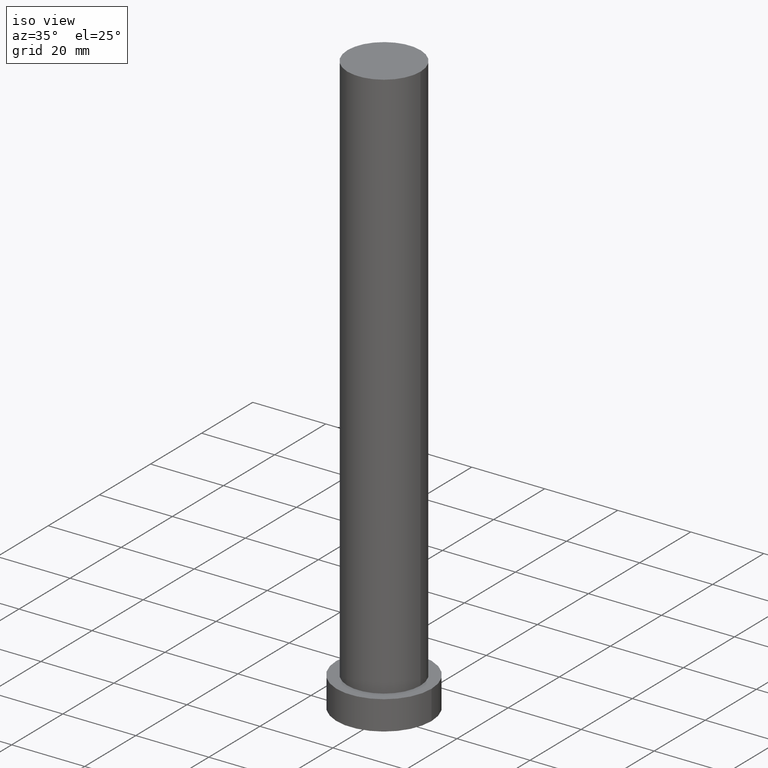
[diagram: clean part render]
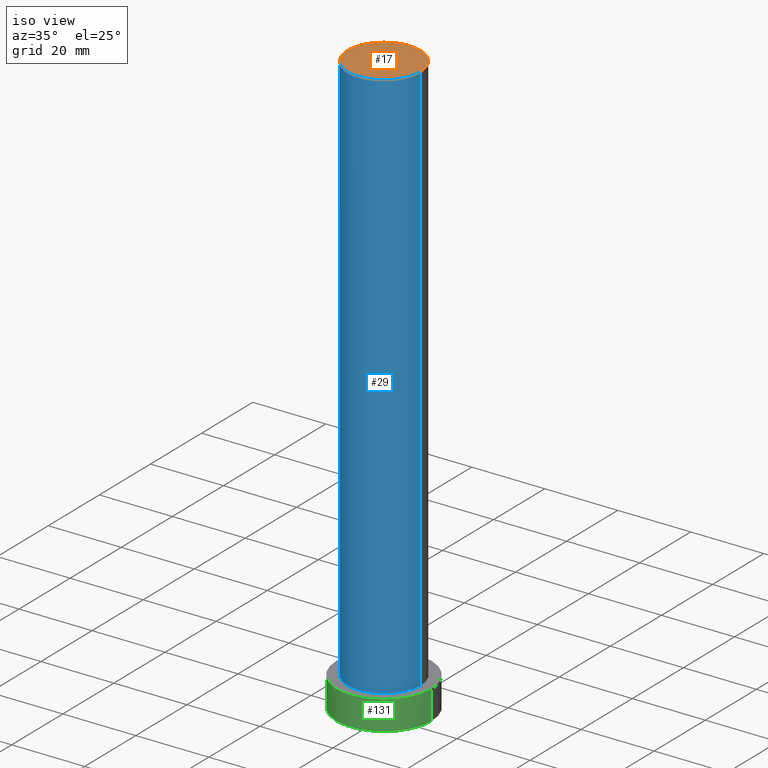
[diagram: same view with three faces highlighted in distinct colors, each labeled with its STEP entity id]
A machine part, iso view with three faces highlighted in distinct colors.
Their STEP definitions:

[orange] entity #17 — the highlighted planar face has unit normal (0, 0, 1).
#1 = CARTESIAN_POINT ( 'NONE',  ( -10.00000000000000000, 0.000000000000000000, 160.0000000000000000 ) ) ;
#6 = PLANE ( 'NONE',  #111 ) ;
#11 = FACE_OUTER_BOUND ( 'NONE', #201, .T. ) ;
#17 = ADVANCED_FACE ( 'NONE', ( #11 ), #6, .T. ) ;
#32 = ORIENTED_EDGE ( 'NONE', *, *, #229, .T. ) ;
#71 = DIRECTION ( 'NONE',  ( 0.000000000000000000, 0.000000000000000000, 1.000000000000000000 ) ) ;
#89 = DIRECTION ( 'NONE',  ( 1.000000000000000000, 0.000000000000000000, -0.000000000000000000 ) ) ;
#91 = ORIENTED_EDGE ( 'NONE', *, *, #170, .T. ) ;
#103 = CIRCLE ( 'NONE', #104, 10.00000000000000000 ) ;
#104 = AXIS2_PLACEMENT_3D ( 'NONE', #139, #197, #193 ) ;
#111 = AXIS2_PLACEMENT_3D ( 'NONE', #242, #71, #89 ) ;
#116 = DIRECTION ( 'NONE',  ( 0.000000000000000000, 0.000000000000000000, 1.000000000000000000 ) ) ;
#128 = AXIS2_PLACEMENT_3D ( 'NONE', #137, #116, #159 ) ;
#137 = CARTESIAN_POINT ( 'NONE',  ( 0.000000000000000000, 0.000000000000000000, 160.0000000000000000 ) ) ;
#139 = CARTESIAN_POINT ( 'NONE',  ( 0.000000000000000000, 0.000000000000000000, 160.0000000000000000 ) ) ;
#159 = DIRECTION ( 'NONE',  ( 1.000000000000000000, 0.000000000000000000, 0.000000000000000000 ) ) ;
#170 = EDGE_CURVE ( 'NONE', #199, #204, #232, .T. ) ;
#175 = CARTESIAN_POINT ( 'NONE',  ( 10.00000000000000000, 1.224646799147353256E-15, 160.0000000000000000 ) ) ;
#193 = DIRECTION ( 'NONE',  ( 1.000000000000000000, 0.000000000000000000, 0.000000000000000000 ) ) ;
#197 = DIRECTION ( 'NONE',  ( 0.000000000000000000, 0.000000000000000000, 1.000000000000000000 ) ) ;
#199 = VERTEX_POINT ( 'NONE', #175 ) ;
#201 = EDGE_LOOP ( 'NONE', ( #32, #91 ) ) ;
#204 = VERTEX_POINT ( 'NONE', #1 ) ;
#229 = EDGE_CURVE ( 'NONE', #204, #199, #103, .T. ) ;
#232 = CIRCLE ( 'NONE', #128, 10.00000000000000000 ) ;
#242 = CARTESIAN_POINT ( 'NONE',  ( 0.000000000000000000, 0.000000000000000000, 160.0000000000000000 ) ) ;

[blue] entity #29 — the highlighted cylindrical surface (partial cylindrical patch) has radius 10 mm, axis along (-0, -0, -1).
#1 = CARTESIAN_POINT ( 'NONE',  ( -10.00000000000000000, 0.000000000000000000, 160.0000000000000000 ) ) ;
#19 = CARTESIAN_POINT ( 'NONE',  ( -10.00000000000000000, 0.000000000000000000, 160.0000000000000000 ) ) ;
#29 = ADVANCED_FACE ( 'NONE', ( #125 ), #167, .T. ) ;
#61 = EDGE_CURVE ( 'NONE', #199, #211, #161, .T. ) ;
#63 = DIRECTION ( 'NONE',  ( -0.000000000000000000, -0.000000000000000000, -1.000000000000000000 ) ) ;
#72 = CARTESIAN_POINT ( 'NONE',  ( 0.000000000000000000, 0.000000000000000000, 160.0000000000000000 ) ) ;
#76 = CARTESIAN_POINT ( 'NONE',  ( -10.00000000000000000, 0.000000000000000000, 8.000000000000000000 ) ) ;
#86 = EDGE_CURVE ( 'NONE', #164, #211, #87, .T. ) ;
#87 = CIRCLE ( 'NONE', #132, 10.00000000000000000 ) ;
#99 = EDGE_CURVE ( 'NONE', #204, #164, #192, .T. ) ;
#103 = CIRCLE ( 'NONE', #104, 10.00000000000000000 ) ;
#104 = AXIS2_PLACEMENT_3D ( 'NONE', #139, #197, #193 ) ;
#106 = AXIS2_PLACEMENT_3D ( 'NONE', #72, #206, #227 ) ;
#122 = ORIENTED_EDGE ( 'NONE', *, *, #61, .F. ) ;
#125 = FACE_OUTER_BOUND ( 'NONE', #169, .T. ) ;
#132 = AXIS2_PLACEMENT_3D ( 'NONE', #153, #234, #156 ) ;
#139 = CARTESIAN_POINT ( 'NONE',  ( 0.000000000000000000, 0.000000000000000000, 160.0000000000000000 ) ) ;
#141 = DIRECTION ( 'NONE',  ( -0.000000000000000000, -0.000000000000000000, -1.000000000000000000 ) ) ;
#153 = CARTESIAN_POINT ( 'NONE',  ( 0.000000000000000000, 0.000000000000000000, 8.000000000000000000 ) ) ;
#155 = ORIENTED_EDGE ( 'NONE', *, *, #86, .T. ) ;
#156 = DIRECTION ( 'NONE',  ( 1.000000000000000000, 0.000000000000000000, 0.000000000000000000 ) ) ;
#161 = LINE ( 'NONE', #240, #251 ) ;
#164 = VERTEX_POINT ( 'NONE', #76 ) ;
#167 = CYLINDRICAL_SURFACE ( 'NONE', #106, 10.00000000000000000 ) ;
#169 = EDGE_LOOP ( 'NONE', ( #122, #186, #179, #155 ) ) ;
#175 = CARTESIAN_POINT ( 'NONE',  ( 10.00000000000000000, 1.224646799147353256E-15, 160.0000000000000000 ) ) ;
#179 = ORIENTED_EDGE ( 'NONE', *, *, #99, .T. ) ;
#180 = VECTOR ( 'NONE', #63, 1000.000000000000000 ) ;
#186 = ORIENTED_EDGE ( 'NONE', *, *, #229, .F. ) ;
#192 = LINE ( 'NONE', #19, #180 ) ;
#193 = DIRECTION ( 'NONE',  ( 1.000000000000000000, 0.000000000000000000, 0.000000000000000000 ) ) ;
#197 = DIRECTION ( 'NONE',  ( 0.000000000000000000, 0.000000000000000000, 1.000000000000000000 ) ) ;
#199 = VERTEX_POINT ( 'NONE', #175 ) ;
#204 = VERTEX_POINT ( 'NONE', #1 ) ;
#206 = DIRECTION ( 'NONE',  ( -0.000000000000000000, -0.000000000000000000, -1.000000000000000000 ) ) ;
#211 = VERTEX_POINT ( 'NONE', #237 ) ;
#227 = DIRECTION ( 'NONE',  ( -1.000000000000000000, 0.000000000000000000, 0.000000000000000000 ) ) ;
#229 = EDGE_CURVE ( 'NONE', #204, #199, #103, .T. ) ;
#234 = DIRECTION ( 'NONE',  ( 0.000000000000000000, 0.000000000000000000, 1.000000000000000000 ) ) ;
#237 = CARTESIAN_POINT ( 'NONE',  ( 10.00000000000000000, 1.224646799147353256E-15, 8.000000000000000000 ) ) ;
#240 = CARTESIAN_POINT ( 'NONE',  ( 10.00000000000000000, 1.224646799147353256E-15, 160.0000000000000000 ) ) ;
#251 = VECTOR ( 'NONE', #141, 1000.000000000000000 ) ;

[green] entity #131 — the highlighted cylindrical surface (partial cylindrical patch) has radius 13 mm, axis along (-0, -0, -1).
#2 = CARTESIAN_POINT ( 'NONE',  ( -13.00000000000000178, 0.000000000000000000, 0.000000000000000000 ) ) ;
#9 = EDGE_CURVE ( 'NONE', #28, #254, #181, .T. ) ;
#15 = CARTESIAN_POINT ( 'NONE',  ( 13.00000000000000178, 1.592040838891559293E-15, 0.000000000000000000 ) ) ;
#24 = VECTOR ( 'NONE', #168, 1000.000000000000000 ) ;
#28 = VERTEX_POINT ( 'NONE', #184 ) ;
#33 = AXIS2_PLACEMENT_3D ( 'NONE', #118, #83, #50 ) ;
#42 = EDGE_LOOP ( 'NONE', ( #120, #62, #51, #230 ) ) ;
#43 = EDGE_CURVE ( 'NONE', #254, #58, #148, .T. ) ;
#47 = FACE_OUTER_BOUND ( 'NONE', #42, .T. ) ;
#50 = DIRECTION ( 'NONE',  ( 1.000000000000000000, 0.000000000000000000, 0.000000000000000000 ) ) ;
#51 = ORIENTED_EDGE ( 'NONE', *, *, #9, .T. ) ;
#58 = VERTEX_POINT ( 'NONE', #15 ) ;
#62 = ORIENTED_EDGE ( 'NONE', *, *, #238, .F. ) ;
#64 = CARTESIAN_POINT ( 'NONE',  ( 0.000000000000000000, 0.000000000000000000, 8.000000000000000000 ) ) ;
#68 = LINE ( 'NONE', #138, #146 ) ;
#83 = DIRECTION ( 'NONE',  ( 0.000000000000000000, 0.000000000000000000, 1.000000000000000000 ) ) ;
#98 = DIRECTION ( 'NONE',  ( -1.000000000000000000, 0.000000000000000000, 0.000000000000000000 ) ) ;
#107 = CARTESIAN_POINT ( 'NONE',  ( -13.00000000000000178, 0.000000000000000000, 8.000000000000000000 ) ) ;
#108 = DIRECTION ( 'NONE',  ( 0.000000000000000000, 0.000000000000000000, 1.000000000000000000 ) ) ;
#118 = CARTESIAN_POINT ( 'NONE',  ( 0.000000000000000000, 0.000000000000000000, 8.000000000000000000 ) ) ;
#120 = ORIENTED_EDGE ( 'NONE', *, *, #187, .F. ) ;
#124 = CARTESIAN_POINT ( 'NONE',  ( 0.000000000000000000, 0.000000000000000000, 0.000000000000000000 ) ) ;
#129 = VERTEX_POINT ( 'NONE', #133 ) ;
#130 = CYLINDRICAL_SURFACE ( 'NONE', #191, 13.00000000000000178 ) ;
#131 = ADVANCED_FACE ( 'NONE', ( #47 ), #130, .T. ) ;
#133 = CARTESIAN_POINT ( 'NONE',  ( 13.00000000000000178, 1.592040838891559293E-15, 8.000000000000000000 ) ) ;
#135 = CIRCLE ( 'NONE', #33, 13.00000000000000178 ) ;
#138 = CARTESIAN_POINT ( 'NONE',  ( 13.00000000000000178, 1.592040838891559293E-15, 8.000000000000000000 ) ) ;
#146 = VECTOR ( 'NONE', #221, 1000.000000000000000 ) ;
#148 = CIRCLE ( 'NONE', #212, 13.00000000000000178 ) ;
#168 = DIRECTION ( 'NONE',  ( -0.000000000000000000, -0.000000000000000000, -1.000000000000000000 ) ) ;
#181 = LINE ( 'NONE', #107, #24 ) ;
#184 = CARTESIAN_POINT ( 'NONE',  ( -13.00000000000000178, 0.000000000000000000, 8.000000000000000000 ) ) ;
#185 = DIRECTION ( 'NONE',  ( 1.000000000000000000, 0.000000000000000000, 0.000000000000000000 ) ) ;
#187 = EDGE_CURVE ( 'NONE', #129, #58, #68, .T. ) ;
#191 = AXIS2_PLACEMENT_3D ( 'NONE', #64, #194, #98 ) ;
#194 = DIRECTION ( 'NONE',  ( -0.000000000000000000, -0.000000000000000000, -1.000000000000000000 ) ) ;
#212 = AXIS2_PLACEMENT_3D ( 'NONE', #124, #108, #185 ) ;
#221 = DIRECTION ( 'NONE',  ( -0.000000000000000000, -0.000000000000000000, -1.000000000000000000 ) ) ;
#230 = ORIENTED_EDGE ( 'NONE', *, *, #43, .T. ) ;
#238 = EDGE_CURVE ( 'NONE', #28, #129, #135, .T. ) ;
#254 = VERTEX_POINT ( 'NONE', #2 ) ;